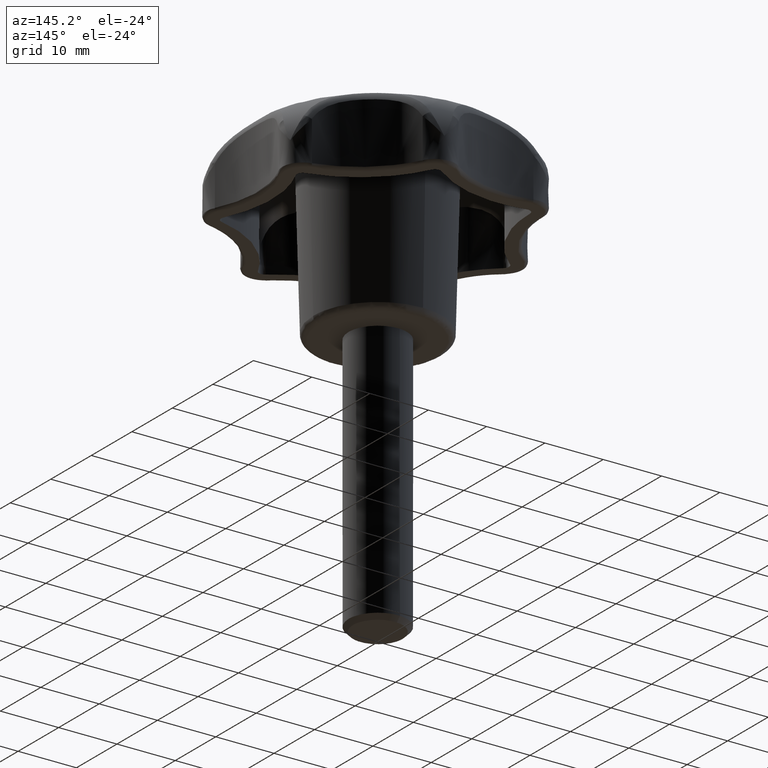
[diagram: clean part render]
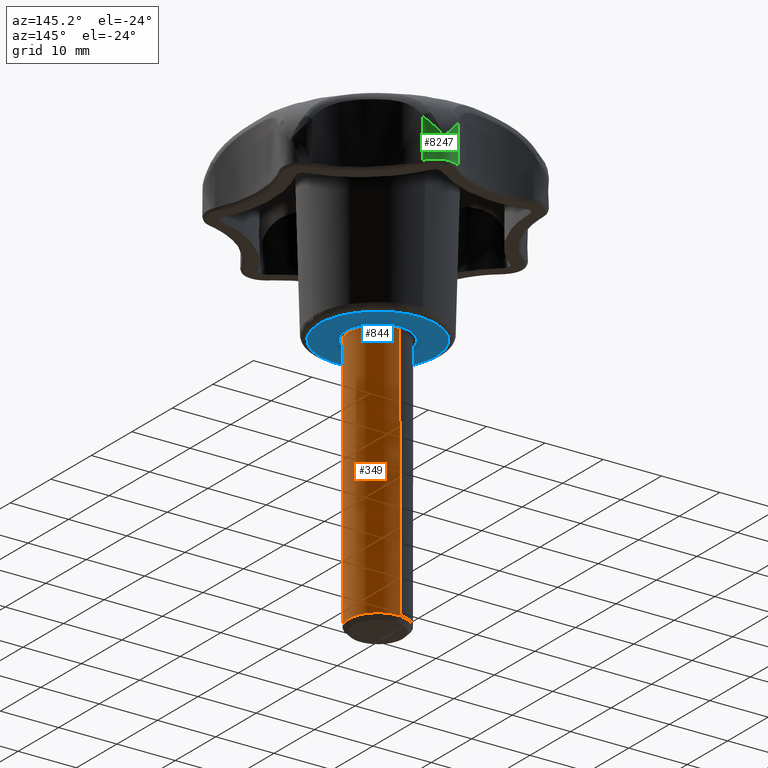
[diagram: same view with three faces highlighted in distinct colors, each labeled with its STEP entity id]
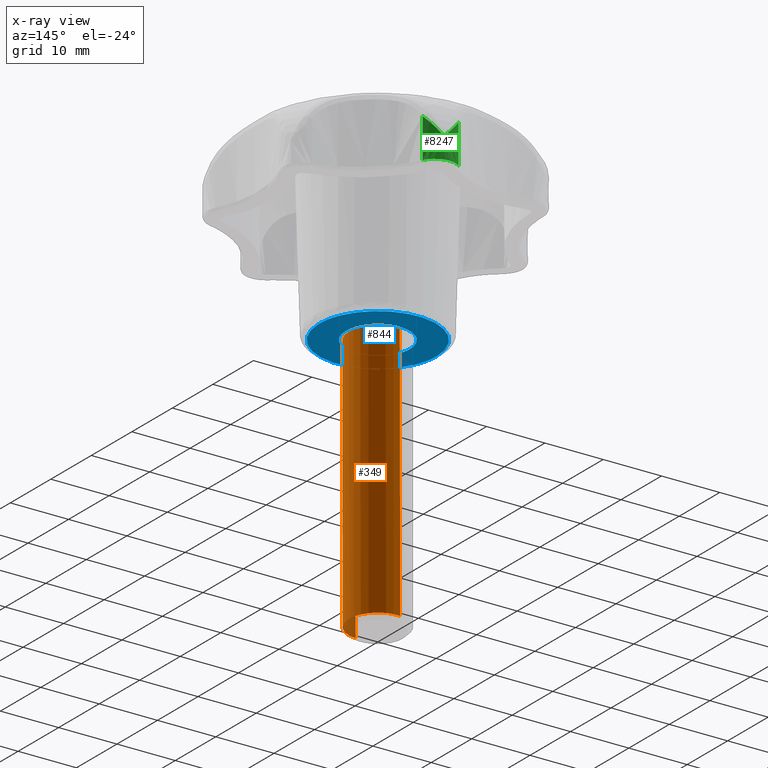
[diagram: x-ray of the same camera — body ghosted, the three highlighted faces saturated]
A machine part, auxiliary view with three faces highlighted in distinct colors.
The next image is the same camera in x-ray (body ghosted, the three faces saturated) — at least one of them is partly hidden behind the body in this view.
Their STEP definitions:

[orange] entity #349 — the highlighted face is a freeform B-spline surface patch.
#101=CARTESIAN_POINT('',(0.348769088338190,-4.987630330396925,-44.249999999952479));
#102=VERTEX_POINT('',#101);
#125=CARTESIAN_POINT('',(-0.348769088338190,4.987630330396926,-44.249999999952479));
#126=VERTEX_POINT('',#125);
#172=CARTESIAN_POINT('',(5.0,0.0,-44.250000000000000));
#173=VERTEX_POINT('',#172);
#174=CARTESIAN_POINT('',(-0.348769088338190,4.987630330396926,-44.249999999952479));
#175=CARTESIAN_POINT('',(-0.174590783221952,4.999813171415988,-44.249999999953260));
#176=CARTESIAN_POINT('',(0.000012832443140,4.999816487507792,-44.249999999954099));
#177=CARTESIAN_POINT('',(5.000006192162183,4.999911447952518,-44.249999999977952));
#178=CARTESIAN_POINT('',(5.0,0.0,-44.250000000000000));
#186=(BOUNDED_CURVE()B_SPLINE_CURVE(2,(#174,#175,#176,#177,#178),.UNSPECIFIED.,.F.,.U.)B_SPLINE_CURVE_WITH_KNOTS((3,2,3),(0.237829682990778,0.250000000000000,0.500000000000000),.UNSPECIFIED.)CURVE()GEOMETRIC_REPRESENTATION_ITEM()RATIONAL_B_SPLINE_CURVE((0.972871408695934,0.985741586708755,1.0,0.707106781186548,1.0))REPRESENTATION_ITEM(''));
#187=EDGE_CURVE('',#126,#173,#186,.T.);
#189=CARTESIAN_POINT('',(5.0,0.0,-44.250000000000000));
#190=CARTESIAN_POINT('',(4.978236804669798,-4.623474288836758,-44.249999999976247));
#191=CARTESIAN_POINT('',(0.348769088338190,-4.987630330396925,-44.249999999952479));
#199=(BOUNDED_CURVE()B_SPLINE_CURVE(2,(#189,#190,#191),.UNSPECIFIED.,.F.,.U.)B_SPLINE_CURVE_WITH_KNOTS((3,3),(0.500000000000000,0.736331300620415),.UNSPECIFIED.)CURVE()GEOMETRIC_REPRESENTATION_ITEM()RATIONAL_B_SPLINE_CURVE((1.0,0.723120658619668,0.969723356146038))REPRESENTATION_ITEM(''));
#200=EDGE_CURVE('',#173,#102,#199,.T.);
#279=CARTESIAN_POINT('',(-0.418513875635520,4.983746030077691,1.106250000000001));
#280=CARTESIAN_POINT('',(-0.362145765980585,4.987193651357120,1.106250000000001));
#281=CARTESIAN_POINT('',(4.685431294435048,5.295916689783620,1.106250000000001));
#282=CARTESIAN_POINT('',(4.990673992109334,0.305242697674285,1.106250000000001));
#283=CARTESIAN_POINT('',(5.295916689783620,-4.685431294435048,1.106250000000001));
#284=CARTESIAN_POINT('',(0.269948123718851,-4.992832700729545,1.106250000000002));
#285=CARTESIAN_POINT('',(0.234859726969785,-4.994978799011594,1.106250000000001));
#286=CARTESIAN_POINT('',(-0.418513875635520,4.983746030077691,-45.383906249999995));
#287=CARTESIAN_POINT('',(-0.362145765980585,4.987193651357120,-45.383906250000024));
#288=CARTESIAN_POINT('',(4.685431294435048,5.295916689783620,-45.383906250000010));
#289=CARTESIAN_POINT('',(4.990673992109334,0.305242697674285,-45.383906250000010));
#290=CARTESIAN_POINT('',(5.295916689783620,-4.685431294435048,-45.383906250000010));
#291=CARTESIAN_POINT('',(0.269948123718851,-4.992832700729545,-45.383906250000024));
#292=CARTESIAN_POINT('',(0.234859726969785,-4.994978799011594,-45.383906249999981));
#300=(BOUNDED_SURFACE()B_SPLINE_SURFACE(2,1,((#279,#286),(#280,#287),(#281,#288),(#282,#289),(#283,#290),(#284,#291),(#285,#292)),.UNSPECIFIED.,.F.,.F.,.U.)B_SPLINE_SURFACE_WITH_KNOTS((3,1,2,1,3),(2,2),(0.0,0.134215212236450,8.418486459698348,16.702757707160249,16.785856004179220),(0.0,46.490156250000020),.UNSPECIFIED.)GEOMETRIC_REPRESENTATION_ITEM()RATIONAL_B_SPLINE_SURFACE(((1.009490448671079,1.009490448671079),(1.004745224335539,1.004745224335539),(0.707106781186548,0.707106781186548),(1.0,1.0),(0.707106781186548,0.707106781186548),(1.002937968466358,1.002937968466358),(1.005875936932717,1.005875936932717)))REPRESENTATION_ITEM('')SURFACE());
#301=CARTESIAN_POINT('',(-0.305242697701054,4.990673992107697,1.554312E-015));
#302=VERTEX_POINT('',#301);
#303=CARTESIAN_POINT('',(-0.305242697701054,4.990673992107697,1.554312E-015));
#304=CARTESIAN_POINT('',(-0.348769088338190,4.987630330396926,-44.249999999952479));
#305=QUASI_UNIFORM_CURVE('',1,(#303,#304),.UNSPECIFIED.,.F.,.U.);
#306=EDGE_CURVE('',#302,#126,#305,.T.);
#307=ORIENTED_EDGE('',*,*,#306,.F.);
#308=CARTESIAN_POINT('',(5.0,0.0,0.0));
#309=VERTEX_POINT('',#308);
#310=CARTESIAN_POINT('',(-0.305242697701054,4.990673992107698,0.0));
#311=CARTESIAN_POINT('',(-0.152763816506367,5.0,0.0));
#312=CARTESIAN_POINT('',(0.0,5.0,0.0));
#313=CARTESIAN_POINT('',(5.000000000000001,5.000000000000001,0.0));
#314=CARTESIAN_POINT('',(5.0,0.0,0.0));
#322=(BOUNDED_CURVE()B_SPLINE_CURVE(2,(#310,#311,#312,#313,#314),.UNSPECIFIED.,.F.,.U.)B_SPLINE_CURVE_WITH_KNOTS((3,2,3),(0.239332962241043,0.250000000000000,0.500000000000000),.UNSPECIFIED.)CURVE()GEOMETRIC_REPRESENTATION_ITEM()RATIONAL_B_SPLINE_CURVE((0.976072041671218,0.987502787902298,1.0,0.707106781186548,1.0))REPRESENTATION_ITEM(''));
#323=EDGE_CURVE('',#302,#309,#322,.T.);
#324=ORIENTED_EDGE('',*,*,#323,.T.);
#325=CARTESIAN_POINT('',(0.305242697701055,-4.990673992107697,1.554312E-015));
#326=VERTEX_POINT('',#325);
#327=CARTESIAN_POINT('',(5.0,0.0,0.0));
#328=CARTESIAN_POINT('',(4.999999999999999,-4.703530334503197,0.0));
#329=CARTESIAN_POINT('',(0.305242697701056,-4.990673992107698,0.0));
#337=(BOUNDED_CURVE()B_SPLINE_CURVE(2,(#327,#328,#329),.UNSPECIFIED.,.F.,.U.)B_SPLINE_CURVE_WITH_KNOTS((3,3),(0.500000000000000,0.739332962241043),.UNSPECIFIED.)CURVE()GEOMETRIC_REPRESENTATION_ITEM()RATIONAL_B_SPLINE_CURVE((1.0,0.719603993284250,0.976072041671218))REPRESENTATION_ITEM(''));
#338=EDGE_CURVE('',#309,#326,#337,.T.);
#339=ORIENTED_EDGE('',*,*,#338,.T.);
#340=CARTESIAN_POINT('',(0.305242697701055,-4.990673992107697,1.554312E-015));
#341=CARTESIAN_POINT('',(0.348769088338190,-4.987630330396925,-44.249999999952479));
#342=QUASI_UNIFORM_CURVE('',1,(#340,#341),.UNSPECIFIED.,.F.,.U.);
#343=EDGE_CURVE('',#326,#102,#342,.T.);
#344=ORIENTED_EDGE('',*,*,#343,.T.);
#345=ORIENTED_EDGE('',*,*,#200,.F.);
#346=ORIENTED_EDGE('',*,*,#187,.F.);
#347=EDGE_LOOP('',(#307,#324,#339,#344,#345,#346));
#348=FACE_OUTER_BOUND('',#347,.T.);
#349=ADVANCED_FACE('',(#348),#300,.T.);

[blue] entity #844 — the highlighted face is a freeform B-spline surface patch.
#642=CARTESIAN_POINT('',(0.335766967544038,-5.489741391314009,3.608225E-016));
#643=VERTEX_POINT('',#642);
#649=CARTESIAN_POINT('',(-5.500000000000000,0.0,0.0));
#650=VERTEX_POINT('',#649);
#651=CARTESIAN_POINT('',(0.335766967544037,-5.489741391314012,0.0));
#652=CARTESIAN_POINT('',(0.168040198193545,-5.500000000000001,0.0));
#653=CARTESIAN_POINT('',(0.0,-5.500000000000000,0.0));
#654=CARTESIAN_POINT('',(-5.500000000000001,-5.500000000000001,0.0));
#655=CARTESIAN_POINT('',(-5.500000000000000,0.0,0.0));
#663=(BOUNDED_CURVE()B_SPLINE_CURVE(2,(#651,#652,#653,#654,#655),.UNSPECIFIED.,.F.,.U.)B_SPLINE_CURVE_WITH_KNOTS((3,2,3),(0.239332962238752,0.250000000000000,0.500000000000000),.UNSPECIFIED.)CURVE()GEOMETRIC_REPRESENTATION_ITEM()RATIONAL_B_SPLINE_CURVE((0.976072041666309,0.987502787899614,1.0,0.707106781186548,1.0))REPRESENTATION_ITEM(''));
#664=EDGE_CURVE('',#643,#650,#663,.T.);
#666=CARTESIAN_POINT('',(-0.335766967544038,5.489741391314009,3.608225E-016));
#667=VERTEX_POINT('',#666);
#668=CARTESIAN_POINT('',(-5.500000000000000,0.0,0.0));
#669=CARTESIAN_POINT('',(-5.500000000000001,5.173883367884703,0.0));
#670=CARTESIAN_POINT('',(-0.335766967544039,5.489741391314010,0.0));
#678=(BOUNDED_CURVE()B_SPLINE_CURVE(2,(#668,#669,#670),.UNSPECIFIED.,.F.,.U.)B_SPLINE_CURVE_WITH_KNOTS((3,3),(0.500000000000000,0.739332962238752),.UNSPECIFIED.)CURVE()GEOMETRIC_REPRESENTATION_ITEM()RATIONAL_B_SPLINE_CURVE((1.0,0.719603993286934,0.976072041666309))REPRESENTATION_ITEM(''));
#679=EDGE_CURVE('',#650,#667,#678,.T.);
#711=CARTESIAN_POINT('',(5.500000000000000,0.0,0.0));
#712=VERTEX_POINT('',#711);
#713=CARTESIAN_POINT('',(-0.335766967544039,5.489741391314010,0.0));
#714=CARTESIAN_POINT('',(-0.168040198193545,5.500000000000000,0.0));
#715=CARTESIAN_POINT('',(0.0,5.500000000000000,0.0));
#716=CARTESIAN_POINT('',(5.500000000000001,5.500000000000001,0.0));
#717=CARTESIAN_POINT('',(5.500000000000000,0.0,0.0));
#725=(BOUNDED_CURVE()B_SPLINE_CURVE(2,(#713,#714,#715,#716,#717),.UNSPECIFIED.,.F.,.U.)B_SPLINE_CURVE_WITH_KNOTS((3,2,3),(0.739332962238752,0.750000000000000,1.0),.UNSPECIFIED.)CURVE()GEOMETRIC_REPRESENTATION_ITEM()RATIONAL_B_SPLINE_CURVE((0.976072041666309,0.987502787899614,1.0,0.707106781186548,1.0))REPRESENTATION_ITEM(''));
#726=EDGE_CURVE('',#667,#712,#725,.T.);
#728=CARTESIAN_POINT('',(5.500000000000000,0.0,0.0));
#729=CARTESIAN_POINT('',(5.500000000000001,-5.173883367884705,0.0));
#730=CARTESIAN_POINT('',(0.335766967544037,-5.489741391314012,0.0));
#738=(BOUNDED_CURVE()B_SPLINE_CURVE(2,(#728,#729,#730),.UNSPECIFIED.,.F.,.U.)B_SPLINE_CURVE_WITH_KNOTS((3,3),(0.0,0.239332962238752),.UNSPECIFIED.)CURVE()GEOMETRIC_REPRESENTATION_ITEM()RATIONAL_B_SPLINE_CURVE((1.0,0.719603993286934,0.976072041666309))REPRESENTATION_ITEM(''));
#739=EDGE_CURVE('',#712,#643,#738,.T.);
#745=CARTESIAN_POINT('',(-11.027424320884149,-11.027206973476281,0.0));
#746=CARTESIAN_POINT('',(11.027424858712260,-11.027206973476281,0.0));
#747=CARTESIAN_POINT('',(-11.027424320884149,11.027207511293790,0.0));
#748=CARTESIAN_POINT('',(11.027424858712260,11.027207511293790,0.0));
#749=B_SPLINE_SURFACE_WITH_KNOTS('',1,1,((#745,#747),(#746,#748)),.UNSPECIFIED.,.F.,.F.,.U.,(2,2),(2,2),(0.0,22.054849179596410),(0.0,22.054414484770071),.UNSPECIFIED.);
#750=CARTESIAN_POINT('',(-10.025842676378041,0.0,0.0));
#751=VERTEX_POINT('',#750);
#752=CARTESIAN_POINT('',(-10.025051082478480,0.125985139209719,1.871005E-016));
#753=VERTEX_POINT('',#752);
#754=CARTESIAN_POINT('',(-10.025842676378041,0.0,0.0));
#755=CARTESIAN_POINT('',(-10.025842678625093,0.062995056517288,9.355026E-017));
#756=CARTESIAN_POINT('',(-10.025051082478484,0.125985139209719,1.871005E-016));
#764=(BOUNDED_CURVE()B_SPLINE_CURVE(2,(#754,#755,#756),.UNSPECIFIED.,.F.,.U.)B_SPLINE_CURVE_WITH_KNOTS((3,3),(0.0,0.002215704082090),.UNSPECIFIED.)CURVE()GEOMETRIC_REPRESENTATION_ITEM()RATIONAL_B_SPLINE_CURVE((1.0,0.997404141197834,0.994854295635224))REPRESENTATION_ITEM(''));
#765=EDGE_CURVE('',#751,#753,#764,.T.);
#766=ORIENTED_EDGE('',*,*,#765,.T.);
#767=CARTESIAN_POINT('',(10.025842676378041,0.0,0.0));
#768=VERTEX_POINT('',#767);
#769=CARTESIAN_POINT('',(-10.025051082478480,0.125985139209719,1.871005E-016));
#770=CARTESIAN_POINT('',(-10.017660786207280,0.718233495333208,1.870663E-016));
#771=CARTESIAN_POINT('',(-9.922303967718802,1.656574118192690,1.862315E-016));
#772=CARTESIAN_POINT('',(-9.589366752140894,3.006829018793098,1.832041E-016));
#773=CARTESIAN_POINT('',(-9.097864936004633,4.309140535400995,1.786943E-016));
#774=CARTESIAN_POINT('',(-8.267212478763712,5.770986688605586,1.710292E-016));
#775=CARTESIAN_POINT('',(-7.209728374582687,7.026170893497417,1.612355E-016));
#776=CARTESIAN_POINT('',(-5.911692100117503,8.152900002904143,1.491897E-016));
#777=CARTESIAN_POINT('',(-4.514168506728808,9.015358963009671,1.362001E-016));
#778=CARTESIAN_POINT('',(-2.908896617141119,9.637106873365710,1.212579E-016));
#779=CARTESIAN_POINT('',(-1.507981315296072,9.941144860279444,1.082039E-016));
#780=CARTESIAN_POINT('',(-0.141921143583065,10.053840786621709,9.546396E-017));
#781=CARTESIAN_POINT('',(1.433059498508635,9.976629398201153,8.076343E-017));
#782=CARTESIAN_POINT('',(3.073908213786568,9.598821253907889,6.543066E-017));
#783=CARTESIAN_POINT('',(4.411100382752362,9.027812622904101,5.291996E-017));
#784=CARTESIAN_POINT('',(5.495256512871159,8.411982531386787,4.276769E-017));
#785=CARTESIAN_POINT('',(6.339402493188826,7.796971156181976,3.485498E-017));
#786=CARTESIAN_POINT('',(7.345542581442691,6.867619620007592,2.541229E-017));
#787=CARTESIAN_POINT('',(8.171429828224895,5.874359014987267,1.764777E-017));
#788=CARTESIAN_POINT('',(8.859652043468641,4.736208598694086,1.115930E-017));
#789=CARTESIAN_POINT('',(9.444320722882903,3.474610040710009,5.629842E-018));
#790=CARTESIAN_POINT('',(9.903583434160430,1.919824238618554,1.253347E-018));
#791=CARTESIAN_POINT('',(10.025906810012360,0.633141622991920,3.652180E-020));
#792=CARTESIAN_POINT('',(10.025842676378041,0.0,0.0));
#793=B_SPLINE_CURVE_WITH_KNOTS('',3,(#769,#770,#771,#772,#773,#774,#775,#776,#777,#778,#779,#780,#781,#782,#783,#784,#785,#786,#787,#788,#789,#790,#791,#792),.UNSPECIFIED.,.F.,.U.,(4,1,1,1,1,1,1,1,1,1,1,1,1,1,1,1,1,1,1,1,1,4),(0.000000143414766,1.776872923896669,2.818467690188612,4.166459647766693,5.943367654446519,7.842796146879504,9.068243007790073,11.090227837889049,12.744564318643871,14.215084172032361,15.379277060918080,16.849751781994222,18.932963939211071,20.403494812755358,21.200034283541360,22.670570569166379,23.528381977242720,25.305278407840540,26.530723705644011,27.511080625790900,29.471753486862202,31.371174065977740),.UNSPECIFIED.);
#794=EDGE_CURVE('',#753,#768,#793,.T.);
#795=ORIENTED_EDGE('',*,*,#794,.T.);
#796=CARTESIAN_POINT('',(10.025051082478480,-0.125985139209717,1.871005E-016));
#797=VERTEX_POINT('',#796);
#798=CARTESIAN_POINT('',(10.025842676378041,0.0,0.0));
#799=CARTESIAN_POINT('',(10.025842678625093,-0.062995056517287,9.355026E-017));
#800=CARTESIAN_POINT('',(10.025051082478484,-0.125985139209717,1.871005E-016));
#808=(BOUNDED_CURVE()B_SPLINE_CURVE(2,(#798,#799,#800),.UNSPECIFIED.,.F.,.U.)B_SPLINE_CURVE_WITH_KNOTS((3,3),(0.500000000000000,0.502215704082090),.UNSPECIFIED.)CURVE()GEOMETRIC_REPRESENTATION_ITEM()RATIONAL_B_SPLINE_CURVE((1.0,0.997404141197834,0.994854295635224))REPRESENTATION_ITEM(''));
#809=EDGE_CURVE('',#768,#797,#808,.T.);
#810=ORIENTED_EDGE('',*,*,#809,.T.);
#811=CARTESIAN_POINT('',(10.025051082478480,-0.125985139209717,1.871005E-016));
#812=CARTESIAN_POINT('',(10.014531916175100,-0.983740842201013,1.870527E-016));
#813=CARTESIAN_POINT('',(9.802982444361600,-2.472013277428135,1.851660E-016));
#814=CARTESIAN_POINT('',(9.036132102276612,-4.485051421684818,1.781286E-016));
#815=CARTESIAN_POINT('',(8.136429560410763,-5.931361138556760,1.698183E-016));
#816=CARTESIAN_POINT('',(7.223722463484466,-6.981620881684022,1.613635E-016));
#817=CARTESIAN_POINT('',(6.292153064178888,-7.841565221970505,1.527215E-016));
#818=CARTESIAN_POINT('',(5.089060416010184,-8.695211347811030,1.415456E-016));
#819=CARTESIAN_POINT('',(3.405213399210645,-9.500315294949706,1.258810E-016));
#820=CARTESIAN_POINT('',(1.692446144356918,-9.932771486440782,1.099247E-016));
#821=CARTESIAN_POINT('',(0.121142777405609,-10.052660163982440,9.527001E-017));
#822=CARTESIAN_POINT('',(-1.227761812256289,-9.982315539522379,8.267937E-017));
#823=CARTESIAN_POINT('',(-2.655683593241932,-9.708273007619917,6.933949E-017));
#824=CARTESIAN_POINT('',(-4.218932564935768,-9.151091605625551,5.472029E-017));
#825=CARTESIAN_POINT('',(-5.753098409417582,-8.279691404636461,4.035403E-017));
#826=CARTESIAN_POINT('',(-6.976359322348848,-7.249396461246943,2.887948E-017));
#827=CARTESIAN_POINT('',(-8.009900378443001,-6.088127872255979,1.916752E-017));
#828=CARTESIAN_POINT('',(-8.789532654692165,-4.907536273236334,1.182362E-017));
#829=CARTESIAN_POINT('',(-9.485925844389477,-3.380238189180789,5.236096E-018));
#830=CARTESIAN_POINT('',(-9.922505477861003,-1.776864585816923,1.068406E-018));
#831=CARTESIAN_POINT('',(-10.025880267143201,-0.571860520380574,3.317664E-020));
#832=CARTESIAN_POINT('',(-10.025842676378041,0.0,0.0));
#833=B_SPLINE_CURVE_WITH_KNOTS('',3,(#811,#812,#813,#814,#815,#816,#817,#818,#819,#820,#821,#822,#823,#824,#825,#826,#827,#828,#829,#830,#831,#832),.UNSPECIFIED.,.F.,.U.,(4,1,1,1,1,1,1,1,1,1,1,1,1,1,1,1,1,1,1,4),(0.000000143415754,2.573392758754878,4.472839126913513,6.433534037142657,7.658979924012872,8.639334755467683,10.232405299344769,12.070584201304101,14.215084172034389,15.501808086450501,16.788434348078209,18.258980425876629,19.852041884165232,21.751487728899789,23.528381977242748,24.631283211562192,26.408180766125941,27.756156466935320,29.655590134597372,31.371174065977740),.UNSPECIFIED.);
#834=EDGE_CURVE('',#797,#751,#833,.T.);
#835=ORIENTED_EDGE('',*,*,#834,.T.);
#836=EDGE_LOOP('',(#766,#795,#810,#835));
#837=FACE_OUTER_BOUND('',#836,.T.);
#838=ORIENTED_EDGE('',*,*,#679,.F.);
#839=ORIENTED_EDGE('',*,*,#664,.F.);
#840=ORIENTED_EDGE('',*,*,#739,.F.);
#841=ORIENTED_EDGE('',*,*,#726,.F.);
#842=EDGE_LOOP('',(#838,#839,#840,#841));
#843=FACE_BOUND('',#842,.T.);
#844=ADVANCED_FACE('',(#837,#843),#749,.F.);

[green] entity #8247 — the highlighted face is a freeform B-spline surface patch.
#3205=CARTESIAN_POINT('',(5.563023274532569,24.373197756430201,21.138975563360098));
#3206=VERTEX_POINT('',#3205);
#3230=CARTESIAN_POINT('',(2.601986538722750,23.697360399521951,24.301413324988498));
#3231=VERTEX_POINT('',#3230);
#3232=CARTESIAN_POINT('',(2.601986538722750,23.697360399521951,24.301413324988498));
#3233=CARTESIAN_POINT('',(2.818102018807813,23.869707121788299,24.050993784431370));
#3234=CARTESIAN_POINT('',(3.047660269581977,24.011306752413610,23.797850354988380));
#3235=CARTESIAN_POINT('',(3.407023118124366,24.181345235697979,23.411182906140649));
#3236=CARTESIAN_POINT('',(3.529344796219139,24.230913252537270,23.281137249508390));
#3237=CARTESIAN_POINT('',(3.716182400468038,24.294666952733088,23.083959372017731));
#3238=CARTESIAN_POINT('',(3.779044271555940,24.314149003895938,23.017858529639550));
#3239=CARTESIAN_POINT('',(3.905081695188549,24.349376272519159,22.885661947689979));
#3240=CARTESIAN_POINT('',(3.968347349268298,24.365154581341780,22.819470919108820));
#3241=CARTESIAN_POINT('',(4.158774609808121,24.407069643692100,22.620529289130101));
#3242=CARTESIAN_POINT('',(4.286565160927585,24.427795958072871,22.487410537900061));
#3243=CARTESIAN_POINT('',(4.543281803623448,24.455033535452390,22.219711125020751));
#3244=CARTESIAN_POINT('',(4.672339583659106,24.461521493238230,22.084992659297939));
#3245=CARTESIAN_POINT('',(4.929346654510940,24.460299365339271,21.815416816514851));
#3246=CARTESIAN_POINT('',(5.057526405298978,24.452611651871461,21.680319408474471));
#3247=CARTESIAN_POINT('',(5.248406807129882,24.430620610297201,21.477408349522719));
#3248=CARTESIAN_POINT('',(5.311806614613984,24.421546405860241,21.409722302157778));
#3249=CARTESIAN_POINT('',(5.406432148632275,24.405344171580520,21.308169596564920));
#3250=CARTESIAN_POINT('',(5.437896978146085,24.399511332277669,21.274312316718060));
#3251=CARTESIAN_POINT('',(5.500652114124048,24.386985630760389,21.206595899650651));
#3252=CARTESIAN_POINT('',(5.532195519433587,24.380233925189980,21.172641328897821));
#3253=CARTESIAN_POINT('',(5.563023260411500,24.373197694561750,21.138975563360152));
#3254=B_SPLINE_CURVE_WITH_KNOTS('',3,(#3232,#3233,#3234,#3235,#3236,#3237,#3238,#3239,#3240,#3241,#3242,#3243,#3244,#3245,#3246,#3247,#3248,#3249,#3250,#3251,#3252,#3253),.UNSPECIFIED.,.F.,.U.,(4,2,2,2,2,2,2,2,2,2,4),(0.0,0.249999999999999,0.374999999999997,0.437499999999998,0.499999999999998,0.624999999999999,0.750000000000000,0.875000000000001,0.937500000000001,0.968750000000000,1.0),.UNSPECIFIED.);
#3255=EDGE_CURVE('',#3231,#3206,#3254,.T.);
#7941=CARTESIAN_POINT('',(7.937591030085770,22.479543102636299,17.500000000000000));
#7942=VERTEX_POINT('',#7941);
#7991=CARTESIAN_POINT('',(2.601986538722750,23.697360399521951,17.500000000000000));
#7992=VERTEX_POINT('',#7991);
#8006=CARTESIAN_POINT('',(7.937591030085770,22.479543102636299,17.500000000000000));
#8007=CARTESIAN_POINT('',(7.816955396071871,22.730183298885731,17.499999999999989));
#8008=CARTESIAN_POINT('',(7.550927403768689,23.146868889723962,17.500000000000028));
#8009=CARTESIAN_POINT('',(7.077916343657589,23.626525122459419,17.499999999999961));
#8010=CARTESIAN_POINT('',(6.518599280785095,24.029389938336632,17.500000000000000));
#8011=CARTESIAN_POINT('',(5.916437747557525,24.298806973744490,17.500000000000089));
#8012=CARTESIAN_POINT('',(5.163244338544647,24.465205256798420,17.499999999999918));
#8013=CARTESIAN_POINT('',(4.421138676453938,24.475607761434770,17.500000000000011));
#8014=CARTESIAN_POINT('',(3.490041792858388,24.263096127687088,17.499999999999989));
#8015=CARTESIAN_POINT('',(2.908867149770056,23.942447724760829,17.499999999999989));
#8016=CARTESIAN_POINT('',(2.601986538722750,23.697360399521951,17.500000000000000));
#8017=B_SPLINE_CURVE_WITH_KNOTS('',3,(#8006,#8007,#8008,#8009,#8010,#8011,#8012,#8013,#8014,#8015,#8016),.UNSPECIFIED.,.F.,.U.,(4,1,1,1,1,1,1,1,4),(-8.067942E-009,0.834475842055910,1.472633005386115,2.012609066412896,2.896189110803692,3.436118482781172,4.319721670467504,5.105132320553050,6.283235988245001),.UNSPECIFIED.);
#8018=EDGE_CURVE('',#7942,#7992,#8017,.T.);
#8077=CARTESIAN_POINT('',(2.601986538722750,23.697360399521951,24.301413324988498));
#8078=CARTESIAN_POINT('',(2.601986538722750,23.697360399521951,17.500000000000000));
#8079=QUASI_UNIFORM_CURVE('',1,(#8077,#8078),.UNSPECIFIED.,.F.,.U.);
#8080=EDGE_CURVE('',#3231,#7992,#8079,.T.);
#8100=CARTESIAN_POINT('',(7.937591030085770,22.479543102636299,24.301413901543050));
#8101=VERTEX_POINT('',#8100);
#8102=CARTESIAN_POINT('',(7.937591030085770,22.479543102636299,24.301413901543050));
#8103=CARTESIAN_POINT('',(7.937591030085770,22.479543102636299,17.500000000000000));
#8104=QUASI_UNIFORM_CURVE('',1,(#8102,#8103),.UNSPECIFIED.,.F.,.U.);
#8105=EDGE_CURVE('',#8101,#7942,#8104,.T.);
#8202=CARTESIAN_POINT('',(7.979832217310690,22.388512514107859,24.471449249081630));
#8203=CARTESIAN_POINT('',(7.979832217310690,22.388512514107859,17.325713768772960));
#8204=CARTESIAN_POINT('',(5.980495672168263,26.864074329274057,24.471449249081633));
#8205=CARTESIAN_POINT('',(5.980495672168263,26.864074329274057,17.325713768772960));
#8206=CARTESIAN_POINT('',(2.396474608340939,23.520005969303245,24.471449249081626));
#8207=CARTESIAN_POINT('',(2.396474608340939,23.520005969303245,17.325713768772957));
#8215=(BOUNDED_SURFACE()B_SPLINE_SURFACE(1,2,((#8202,#8204,#8206),(#8203,#8205,#8207)),.UNSPECIFIED.,.F.,.F.,.U.)B_SPLINE_SURFACE_WITH_KNOTS((2,2),(3,3),(0.0,7.145735480308674),(0.0,7.206219501430961),.UNSPECIFIED.)GEOMETRIC_REPRESENTATION_ITEM()RATIONAL_B_SPLINE_SURFACE(((1.0,0.580950309544853,0.999505584172624),(1.0,0.580950309544853,0.999505584172624)))REPRESENTATION_ITEM('')SURFACE());
#8216=ORIENTED_EDGE('',*,*,#3255,.T.);
#8217=CARTESIAN_POINT('',(5.563023274532569,24.373197756430201,21.138975563360098));
#8218=CARTESIAN_POINT('',(5.593851004930134,24.366161463125401,21.172641332764229));
#8219=CARTESIAN_POINT('',(5.625200089968790,24.358558368246470,21.206595907394561));
#8220=CARTESIAN_POINT('',(5.687175219090776,24.342615200609600,21.274312332182440));
#8221=CARTESIAN_POINT('',(5.718054828573717,24.334218328400880,21.308169615895569));
#8222=CARTESIAN_POINT('',(5.810339385316628,24.307759553421569,21.409722333060479));
#8223=CARTESIAN_POINT('',(5.871397794691577,24.288426981123472,21.477408388090829));
#8224=CARTESIAN_POINT('',(6.052916669964100,24.225420313865691,21.680319470259668));
#8225=CARTESIAN_POINT('',(6.171738221264310,24.176731587813698,21.815416893056881));
#8226=CARTESIAN_POINT('',(6.403823878051032,24.066321480135329,22.084992767722731));
#8227=CARTESIAN_POINT('',(6.517285911906929,24.004479949873499,22.219711248330501));
#8228=CARTESIAN_POINT('',(6.736761693223024,23.868554541196289,22.487410690168691));
#8229=CARTESIAN_POINT('',(6.842904200269426,23.794434522159211,22.620529456245539));
#8230=CARTESIAN_POINT('',(6.996286983080680,23.674047042065709,22.819471109160130));
#8231=CARTESIAN_POINT('',(7.046441420491385,23.632381330706650,22.885662145497879));
#8232=CARTESIAN_POINT('',(7.144712684545045,23.545957053253421,23.017858743207469));
#8233=CARTESIAN_POINT('',(7.192896331822083,23.501129579438519,23.083959593296029));
#8234=CARTESIAN_POINT('',(7.333569508756479,23.362623659501072,23.281137488096729));
#8235=CARTESIAN_POINT('',(7.422270779449835,23.264891015920782,23.411183156809258));
#8236=CARTESIAN_POINT('',(7.672268592502536,22.955769885081619,23.797850643626241));
#8237=CARTESIAN_POINT('',(7.817655653739401,22.728591390848109,24.050994100633378));
#8238=CARTESIAN_POINT('',(7.937590830335250,22.479543517422499,24.301413655555450));
#8239=B_SPLINE_CURVE_WITH_KNOTS('',3,(#8217,#8218,#8219,#8220,#8221,#8222,#8223,#8224,#8225,#8226,#8227,#8228,#8229,#8230,#8231,#8232,#8233,#8234,#8235,#8236,#8237,#8238),.UNSPECIFIED.,.F.,.U.,(4,2,2,2,2,2,2,2,2,2,4),(0.0,0.031249999999999,0.062499999999999,0.124999999999999,0.250000000000001,0.375000000000003,0.500000000000005,0.562500000000005,0.625000000000005,0.750000000000004,1.0),.UNSPECIFIED.);
#8240=EDGE_CURVE('',#3206,#8101,#8239,.T.);
#8241=ORIENTED_EDGE('',*,*,#8240,.T.);
#8242=ORIENTED_EDGE('',*,*,#8105,.T.);
#8243=ORIENTED_EDGE('',*,*,#8018,.T.);
#8244=ORIENTED_EDGE('',*,*,#8080,.F.);
#8245=EDGE_LOOP('',(#8216,#8241,#8242,#8243,#8244));
#8246=FACE_OUTER_BOUND('',#8245,.T.);
#8247=ADVANCED_FACE('',(#8246),#8215,.T.);